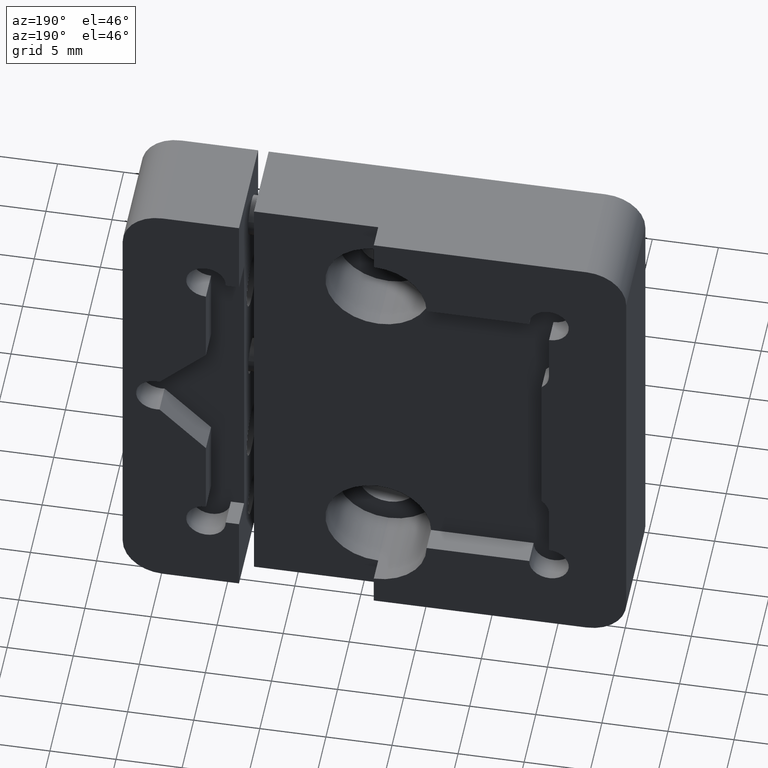
[diagram: clean part render]
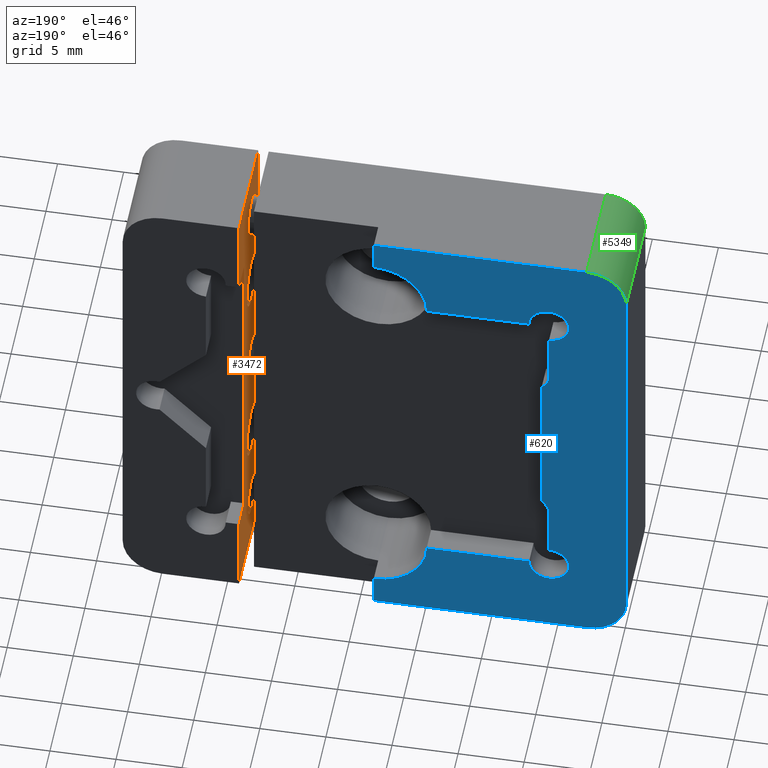
[diagram: same view with three faces highlighted in distinct colors, each labeled with its STEP entity id]
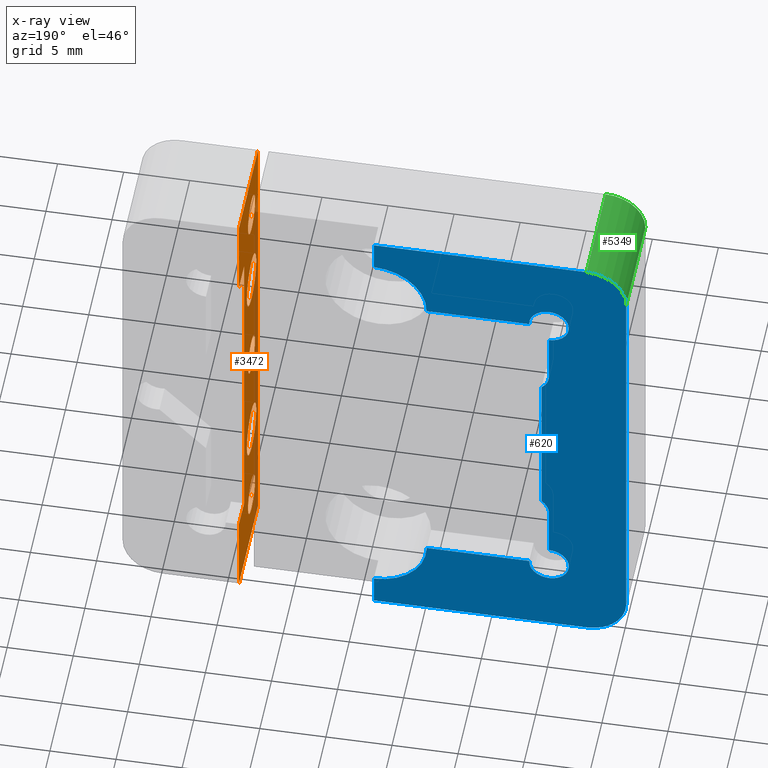
[diagram: x-ray of the same camera — body ghosted, the three highlighted faces saturated]
A machine part, auxiliary view with three faces highlighted in distinct colors.
The next image is the same camera in x-ray (body ghosted, the three faces saturated) — at least one of them is partly hidden behind the body in this view.
Their STEP definitions:

[orange] entity #3472 — the highlighted planar face has unit normal (-1, 0, 0).
#27 = VERTEX_POINT ( 'NONE', #4456 ) ;
#188 = DIRECTION ( 'NONE',  ( 0.000000000000000000, 0.000000000000000000, 1.000000000000000000 ) ) ;
#215 = DIRECTION ( 'NONE',  ( -1.365923996832131116E-16, 0.000000000000000000, -1.000000000000000000 ) ) ;
#245 = DIRECTION ( 'NONE',  ( 0.000000000000000000, 0.000000000000000000, 1.000000000000000000 ) ) ;
#260 = DIRECTION ( 'NONE',  ( 0.000000000000000000, 1.000000000000000000, 0.000000000000000000 ) ) ;
#294 = CIRCLE ( 'NONE', #5994, 2.000000000000000000 ) ;
#363 = CIRCLE ( 'NONE', #6059, 1.499999999999999556 ) ;
#372 = LINE ( 'NONE', #2431, #5809 ) ;
#378 = FACE_BOUND ( 'NONE', #4503, .T. ) ;
#424 = DIRECTION ( 'NONE',  ( 0.000000000000000000, 1.000000000000000000, -0.000000000000000000 ) ) ;
#481 = VERTEX_POINT ( 'NONE', #6073 ) ;
#543 = EDGE_CURVE ( 'NONE', #1434, #481, #3547, .T. ) ;
#545 = DIRECTION ( 'NONE',  ( 1.365923996832131116E-16, -0.000000000000000000, 1.000000000000000000 ) ) ;
#578 = CARTESIAN_POINT ( 'NONE',  ( 10.25000000000000000, -0.9465000000000003411, -2.240115354804697614E-15 ) ) ;
#616 = EDGE_LOOP ( 'NONE', ( #3933, #3879, #1502, #722, #6039, #2623, #6249, #2002 ) ) ;
#643 = VERTEX_POINT ( 'NONE', #6425 ) ;
#679 = VERTEX_POINT ( 'NONE', #6395 ) ;
#683 = CARTESIAN_POINT ( 'NONE',  ( 10.24999999999999822, 4.453500000000000014, -19.05000000000000426 ) ) ;
#705 = EDGE_LOOP ( 'NONE', ( #2522, #4071 ) ) ;
#722 = ORIENTED_EDGE ( 'NONE', *, *, #4191, .T. ) ;
#802 = EDGE_CURVE ( 'NONE', #5320, #3295, #3093, .T. ) ;
#841 = FACE_BOUND ( 'NONE', #2216, .T. ) ;
#842 = AXIS2_PLACEMENT_3D ( 'NONE', #1722, #4760, #245 ) ;
#870 = FACE_OUTER_BOUND ( 'NONE', #616, .T. ) ;
#907 = ORIENTED_EDGE ( 'NONE', *, *, #5249, .F. ) ;
#948 = DIRECTION ( 'NONE',  ( 0.000000000000000000, 0.000000000000000000, -1.000000000000000000 ) ) ;
#997 = CARTESIAN_POINT ( 'NONE',  ( 10.25000000000000355, -0.9465000000000020064, 14.99999999999999822 ) ) ;
#1064 = VECTOR ( 'NONE', #1867, 1000.000000000000000 ) ;
#1165 = VECTOR ( 'NONE', #5243, 1000.000000000000000 ) ;
#1220 = EDGE_CURVE ( 'NONE', #1739, #2100, #4681, .T. ) ;
#1225 = VERTEX_POINT ( 'NONE', #6251 ) ;
#1342 = DIRECTION ( 'NONE',  ( 0.000000000000000000, 1.000000000000000000, 0.000000000000000000 ) ) ;
#1378 = VECTOR ( 'NONE', #424, 1000.000000000000000 ) ;
#1434 = VERTEX_POINT ( 'NONE', #5539 ) ;
#1492 = CIRCLE ( 'NONE', #3395, 1.499999999999999556 ) ;
#1499 = DIRECTION ( 'NONE',  ( 0.000000000000000000, 0.000000000000000000, 1.000000000000000000 ) ) ;
#1502 = ORIENTED_EDGE ( 'NONE', *, *, #3635, .F. ) ;
#1594 = VECTOR ( 'NONE', #215, 1000.000000000000000 ) ;
#1656 = VERTEX_POINT ( 'NONE', #2874 ) ;
#1671 = LINE ( 'NONE', #1741, #1165 ) ;
#1722 = CARTESIAN_POINT ( 'NONE',  ( 10.25000000000000000, -0.9465000000000003411, -2.240115354804697614E-15 ) ) ;
#1739 = VERTEX_POINT ( 'NONE', #5329 ) ;
#1741 = CARTESIAN_POINT ( 'NONE',  ( 10.24999999999999822, -3.746499999999998831, -19.05000000000000426 ) ) ;
#1774 = CARTESIAN_POINT ( 'NONE',  ( 10.24999999999999822, 2.253500000000000281, -12.76350000000000229 ) ) ;
#1792 = VERTEX_POINT ( 'NONE', #5528 ) ;
#1793 = DIRECTION ( 'NONE',  ( -1.000000000000000000, 0.000000000000000000, 1.365923996832131363E-16 ) ) ;
#1851 = DIRECTION ( 'NONE',  ( -1.000000000000000000, 0.000000000000000000, 1.365923996832131116E-16 ) ) ;
#1867 = DIRECTION ( 'NONE',  ( 1.365923996832131116E-16, -0.000000000000000000, 1.000000000000000000 ) ) ;
#1967 = DIRECTION ( 'NONE',  ( -1.000000000000000000, 0.000000000000000000, 1.365923996832131363E-16 ) ) ;
#2002 = ORIENTED_EDGE ( 'NONE', *, *, #4505, .F. ) ;
#2100 = VERTEX_POINT ( 'NONE', #4554 ) ;
#2191 = ORIENTED_EDGE ( 'NONE', *, *, #543, .F. ) ;
#2216 = EDGE_LOOP ( 'NONE', ( #6134, #907 ) ) ;
#2258 = CARTESIAN_POINT ( 'NONE',  ( 10.25000000000000000, -0.9465000000000003411, -1.450000000000000844 ) ) ;
#2311 = PLANE ( 'NONE',  #2541 ) ;
#2371 = VERTEX_POINT ( 'NONE', #3219 ) ;
#2431 = CARTESIAN_POINT ( 'NONE',  ( 10.25000000000000355, 1.841500000000000359, 12.69999999999999929 ) ) ;
#2442 = AXIS2_PLACEMENT_3D ( 'NONE', #578, #3480, #4556 ) ;
#2522 = ORIENTED_EDGE ( 'NONE', *, *, #3349, .T. ) ;
#2529 = DIRECTION ( 'NONE',  ( -1.000000000000000000, 0.000000000000000000, 1.365923996832131363E-16 ) ) ;
#2541 = AXIS2_PLACEMENT_3D ( 'NONE', #5424, #1851, #3932 ) ;
#2598 = CARTESIAN_POINT ( 'NONE',  ( 10.25000000000000355, 4.453500000000000014, 19.05000000000000071 ) ) ;
#2606 = CARTESIAN_POINT ( 'NONE',  ( 10.25000000000000355, -0.9465000000000011182, 7.999999999999998224 ) ) ;
#2623 = ORIENTED_EDGE ( 'NONE', *, *, #1220, .T. ) ;
#2684 = VECTOR ( 'NONE', #260, 1000.000000000000000 ) ;
#2778 = VERTEX_POINT ( 'NONE', #2258 ) ;
#2801 = CIRCLE ( 'NONE', #4454, 2.000000000000000000 ) ;
#2855 = EDGE_CURVE ( 'NONE', #4664, #1225, #1492, .T. ) ;
#2874 = CARTESIAN_POINT ( 'NONE',  ( 10.24999999999999822, -3.746499999999998831, -19.05000000000000071 ) ) ;
#2892 = EDGE_CURVE ( 'NONE', #2371, #27, #3365, .T. ) ;
#2894 = EDGE_LOOP ( 'NONE', ( #5388, #4427 ) ) ;
#2978 = LINE ( 'NONE', #4929, #1378 ) ;
#3093 = CIRCLE ( 'NONE', #3919, 2.000000000000000000 ) ;
#3219 = CARTESIAN_POINT ( 'NONE',  ( 10.25000000000000355, -3.746499999999998831, 19.05000000000000071 ) ) ;
#3295 = VERTEX_POINT ( 'NONE', #4666 ) ;
#3303 = EDGE_CURVE ( 'NONE', #2100, #643, #4729, .T. ) ;
#3349 = EDGE_CURVE ( 'NONE', #2778, #5232, #6233, .T. ) ;
#3351 = CARTESIAN_POINT ( 'NONE',  ( 10.25000000000000000, -0.9465000000000001190, 1.449999999999996403 ) ) ;
#3365 = LINE ( 'NONE', #6362, #4424 ) ;
#3395 = AXIS2_PLACEMENT_3D ( 'NONE', #6302, #1793, #5296 ) ;
#3472 = ADVANCED_FACE ( 'NONE', ( #378, #841, #3872, #4820, #6420, #870 ), #2311, .T. ) ;
#3480 = DIRECTION ( 'NONE',  ( 1.000000000000000000, -0.000000000000000000, -1.365923996832131363E-16 ) ) ;
#3481 = DIRECTION ( 'NONE',  ( -1.000000000000000000, 0.000000000000000000, 1.365923996832131363E-16 ) ) ;
#3511 = DIRECTION ( 'NONE',  ( -1.000000000000000000, 0.000000000000000000, 1.365923996832131363E-16 ) ) ;
#3547 = CIRCLE ( 'NONE', #5012, 2.000000000000000000 ) ;
#3571 = AXIS2_PLACEMENT_3D ( 'NONE', #4290, #2529, #6089 ) ;
#3580 = ORIENTED_EDGE ( 'NONE', *, *, #4959, .F. ) ;
#3635 = EDGE_CURVE ( 'NONE', #5412, #27, #5046, .T. ) ;
#3639 = CARTESIAN_POINT ( 'NONE',  ( 10.25000000000000178, 4.453500000000000014, 12.69999999999999929 ) ) ;
#3872 = FACE_BOUND ( 'NONE', #2894, .T. ) ;
#3879 = ORIENTED_EDGE ( 'NONE', *, *, #2892, .T. ) ;
#3881 = EDGE_CURVE ( 'NONE', #5232, #2778, #4112, .T. ) ;
#3919 = AXIS2_PLACEMENT_3D ( 'NONE', #2606, #3511, #3936 ) ;
#3932 = DIRECTION ( 'NONE',  ( 1.365923996832131116E-16, 0.000000000000000000, 1.000000000000000000 ) ) ;
#3933 = ORIENTED_EDGE ( 'NONE', *, *, #4378, .F. ) ;
#3936 = DIRECTION ( 'NONE',  ( 0.000000000000000000, 0.000000000000000000, -1.000000000000000000 ) ) ;
#4071 = ORIENTED_EDGE ( 'NONE', *, *, #3881, .T. ) ;
#4112 = CIRCLE ( 'NONE', #2442, 1.449999999999998623 ) ;
#4146 = CARTESIAN_POINT ( 'NONE',  ( 10.25000000000000355, -0.9465000000000020064, 16.50000000000000000 ) ) ;
#4169 = ORIENTED_EDGE ( 'NONE', *, *, #5686, .F. ) ;
#4191 = EDGE_CURVE ( 'NONE', #5412, #1792, #372, .T. ) ;
#4253 = LINE ( 'NONE', #1774, #1064 ) ;
#4284 = CARTESIAN_POINT ( 'NONE',  ( 10.25000000000000355, -0.9465000000000011182, 7.999999999999998224 ) ) ;
#4290 = CARTESIAN_POINT ( 'NONE',  ( 10.25000000000000355, -0.9465000000000020064, 14.99999999999999822 ) ) ;
#4315 = CARTESIAN_POINT ( 'NONE',  ( 10.25000000000000000, -0.9465000000000020064, -15.00000000000000178 ) ) ;
#4378 = EDGE_CURVE ( 'NONE', #2371, #1656, #1671, .T. ) ;
#4417 = EDGE_CURVE ( 'NONE', #1739, #1792, #4253, .T. ) ;
#4424 = VECTOR ( 'NONE', #1342, 1000.000000000000000 ) ;
#4427 = ORIENTED_EDGE ( 'NONE', *, *, #802, .F. ) ;
#4454 = AXIS2_PLACEMENT_3D ( 'NONE', #4284, #1967, #948 ) ;
#4456 = CARTESIAN_POINT ( 'NONE',  ( 10.25000000000000355, 4.453500000000000014, 19.05000000000000071 ) ) ;
#4497 = AXIS2_PLACEMENT_3D ( 'NONE', #997, #3481, #6518 ) ;
#4503 = EDGE_LOOP ( 'NONE', ( #4169, #5603 ) ) ;
#4505 = EDGE_CURVE ( 'NONE', #1656, #643, #2978, .T. ) ;
#4524 = DIRECTION ( 'NONE',  ( -1.000000000000000000, 0.000000000000000000, 1.365923996832131363E-16 ) ) ;
#4554 = CARTESIAN_POINT ( 'NONE',  ( 10.25000000000000000, 4.453500000000000014, -12.69999999999999929 ) ) ;
#4556 = DIRECTION ( 'NONE',  ( 0.000000000000000000, 0.000000000000000000, 1.000000000000000000 ) ) ;
#4664 = VERTEX_POINT ( 'NONE', #6180 ) ;
#4666 = CARTESIAN_POINT ( 'NONE',  ( 10.25000000000000355, -0.9465000000000011182, 9.999999999999998224 ) ) ;
#4681 = LINE ( 'NONE', #4745, #2684 ) ;
#4701 = CARTESIAN_POINT ( 'NONE',  ( 10.25000000000000000, -0.9465000000000011182, -8.000000000000001776 ) ) ;
#4729 = LINE ( 'NONE', #683, #1594 ) ;
#4745 = CARTESIAN_POINT ( 'NONE',  ( 10.25000000000000000, 1.841500000000000359, -12.69999999999999929 ) ) ;
#4760 = DIRECTION ( 'NONE',  ( 1.000000000000000000, -0.000000000000000000, -1.365923996832131363E-16 ) ) ;
#4778 = DIRECTION ( 'NONE',  ( -1.000000000000000000, 0.000000000000000000, 1.365923996832131363E-16 ) ) ;
#4820 = FACE_BOUND ( 'NONE', #5178, .T. ) ;
#4915 = EDGE_CURVE ( 'NONE', #5952, #679, #5348, .T. ) ;
#4929 = CARTESIAN_POINT ( 'NONE',  ( 10.24999999999999822, -3.746499999999998831, -19.05000000000000426 ) ) ;
#4959 = EDGE_CURVE ( 'NONE', #481, #1434, #294, .T. ) ;
#5012 = AXIS2_PLACEMENT_3D ( 'NONE', #4701, #5259, #188 ) ;
#5046 = LINE ( 'NONE', #2598, #5918 ) ;
#5178 = EDGE_LOOP ( 'NONE', ( #3580, #2191 ) ) ;
#5232 = VERTEX_POINT ( 'NONE', #3351 ) ;
#5243 = DIRECTION ( 'NONE',  ( -1.365923996832131116E-16, 0.000000000000000000, -1.000000000000000000 ) ) ;
#5249 = EDGE_CURVE ( 'NONE', #679, #5952, #6417, .T. ) ;
#5259 = DIRECTION ( 'NONE',  ( -1.000000000000000000, 0.000000000000000000, 1.365923996832131363E-16 ) ) ;
#5296 = DIRECTION ( 'NONE',  ( 0.000000000000000000, 0.000000000000000000, 1.000000000000000000 ) ) ;
#5320 = VERTEX_POINT ( 'NONE', #5992 ) ;
#5329 = CARTESIAN_POINT ( 'NONE',  ( 10.24999999999999822, 2.253500000000000281, -12.69999999999999929 ) ) ;
#5348 = CIRCLE ( 'NONE', #4497, 1.500000000000003109 ) ;
#5388 = ORIENTED_EDGE ( 'NONE', *, *, #5752, .F. ) ;
#5412 = VERTEX_POINT ( 'NONE', #3639 ) ;
#5424 = CARTESIAN_POINT ( 'NONE',  ( 10.24999999999999822, -3.746499999999998831, -19.05000000000000426 ) ) ;
#5528 = CARTESIAN_POINT ( 'NONE',  ( 10.25000000000000178, 2.253500000000000281, 12.69999999999999751 ) ) ;
#5539 = CARTESIAN_POINT ( 'NONE',  ( 10.25000000000000000, -0.9465000000000008962, -10.00000000000000178 ) ) ;
#5603 = ORIENTED_EDGE ( 'NONE', *, *, #2855, .F. ) ;
#5686 = EDGE_CURVE ( 'NONE', #1225, #4664, #363, .T. ) ;
#5752 = EDGE_CURVE ( 'NONE', #3295, #5320, #2801, .T. ) ;
#5809 = VECTOR ( 'NONE', #6447, 1000.000000000000000 ) ;
#5918 = VECTOR ( 'NONE', #545, 1000.000000000000000 ) ;
#5952 = VERTEX_POINT ( 'NONE', #4146 ) ;
#5992 = CARTESIAN_POINT ( 'NONE',  ( 10.25000000000000355, -0.9465000000000008962, 5.999999999999998224 ) ) ;
#5994 = AXIS2_PLACEMENT_3D ( 'NONE', #6060, #4524, #1499 ) ;
#6039 = ORIENTED_EDGE ( 'NONE', *, *, #4417, .F. ) ;
#6059 = AXIS2_PLACEMENT_3D ( 'NONE', #4315, #4778, #6343 ) ;
#6060 = CARTESIAN_POINT ( 'NONE',  ( 10.25000000000000000, -0.9465000000000011182, -8.000000000000001776 ) ) ;
#6073 = CARTESIAN_POINT ( 'NONE',  ( 10.25000000000000000, -0.9465000000000011182, -6.000000000000001776 ) ) ;
#6089 = DIRECTION ( 'NONE',  ( 0.000000000000000000, 0.000000000000000000, -1.000000000000000000 ) ) ;
#6134 = ORIENTED_EDGE ( 'NONE', *, *, #4915, .F. ) ;
#6180 = CARTESIAN_POINT ( 'NONE',  ( 10.25000000000000000, -0.9465000000000017844, -16.50000000000000000 ) ) ;
#6233 = CIRCLE ( 'NONE', #842, 1.449999999999998623 ) ;
#6249 = ORIENTED_EDGE ( 'NONE', *, *, #3303, .T. ) ;
#6251 = CARTESIAN_POINT ( 'NONE',  ( 10.25000000000000000, -0.9465000000000020064, -13.50000000000000178 ) ) ;
#6302 = CARTESIAN_POINT ( 'NONE',  ( 10.25000000000000000, -0.9465000000000020064, -15.00000000000000178 ) ) ;
#6343 = DIRECTION ( 'NONE',  ( 0.000000000000000000, 0.000000000000000000, 1.000000000000000000 ) ) ;
#6362 = CARTESIAN_POINT ( 'NONE',  ( 10.25000000000000355, 4.127500000000000391, 19.05000000000000071 ) ) ;
#6395 = CARTESIAN_POINT ( 'NONE',  ( 10.25000000000000355, -0.9465000000000017844, 13.49999999999999467 ) ) ;
#6417 = CIRCLE ( 'NONE', #3571, 1.500000000000003109 ) ;
#6420 = FACE_BOUND ( 'NONE', #705, .T. ) ;
#6425 = CARTESIAN_POINT ( 'NONE',  ( 10.24999999999999822, 4.453500000000000014, -19.05000000000000071 ) ) ;
#6447 = DIRECTION ( 'NONE',  ( 0.000000000000000000, -1.000000000000000000, 0.000000000000000000 ) ) ;
#6518 = DIRECTION ( 'NONE',  ( 0.000000000000000000, 0.000000000000000000, -1.000000000000000000 ) ) ;

[blue] entity #620 — the highlighted planar face has unit normal (0, 1, 0).
#1 = AXIS2_PLACEMENT_3D ( 'NONE', #4347, #3375, #3889 ) ;
#35 = EDGE_CURVE ( 'NONE', #2643, #3073, #552, .T. ) ;
#154 = VECTOR ( 'NONE', #3890, 1000.000000000000000 ) ;
#182 = ORIENTED_EDGE ( 'NONE', *, *, #730, .F. ) ;
#222 = ORIENTED_EDGE ( 'NONE', *, *, #604, .T. ) ;
#284 = CARTESIAN_POINT ( 'NONE',  ( 15.87499999999999645, 4.072500000000000675, -15.87500000000000000 ) ) ;
#371 = CARTESIAN_POINT ( 'NONE',  ( 0.05000000000004857503, 4.072500000000000675, -15.87500000000002842 ) ) ;
#386 = DIRECTION ( 'NONE',  ( 0.000000000000000000, 0.000000000000000000, 1.000000000000000000 ) ) ;
#478 = LINE ( 'NONE', #6097, #1191 ) ;
#552 = LINE ( 'NONE', #6488, #806 ) ;
#570 = ORIENTED_EDGE ( 'NONE', *, *, #3423, .F. ) ;
#594 = CARTESIAN_POINT ( 'NONE',  ( -12.65000000000000213, 4.072500000000000675, -6.115051287312481598 ) ) ;
#604 = EDGE_CURVE ( 'NONE', #1303, #4966, #2201, .T. ) ;
#620 = ADVANCED_FACE ( 'NONE', ( #3293 ), #1790, .T. ) ;
#701 = ORIENTED_EDGE ( 'NONE', *, *, #4578, .T. ) ;
#730 = EDGE_CURVE ( 'NONE', #1341, #6252, #478, .T. ) ;
#804 = CARTESIAN_POINT ( 'NONE',  ( -11.70984513484085809, 4.072500000000000675, 12.69999999999999574 ) ) ;
#806 = VECTOR ( 'NONE', #1986, 1000.000000000000000 ) ;
#886 = CARTESIAN_POINT ( 'NONE',  ( -13.20800000000000018, 4.072500000000000675, -11.26400000000001000 ) ) ;
#888 = EDGE_CURVE ( 'NONE', #4956, #4964, #4553, .T. ) ;
#938 = DIRECTION ( 'NONE',  ( 0.000000000000000000, 1.000000000000000000, 0.000000000000000000 ) ) ;
#1039 = VERTEX_POINT ( 'NONE', #5006 ) ;
#1191 = VECTOR ( 'NONE', #1439, 1000.000000000000000 ) ;
#1276 = DIRECTION ( 'NONE',  ( 0.000000000000000000, 1.000000000000000000, 0.000000000000000000 ) ) ;
#1303 = VERTEX_POINT ( 'NONE', #4342 ) ;
#1309 = DIRECTION ( 'NONE',  ( 0.000000000000000000, 1.000000000000000000, 0.000000000000000000 ) ) ;
#1335 = LINE ( 'NONE', #4361, #6014 ) ;
#1341 = VERTEX_POINT ( 'NONE', #886 ) ;
#1366 = AXIS2_PLACEMENT_3D ( 'NONE', #3475, #4551, #6022 ) ;
#1402 = VECTOR ( 'NONE', #3262, 1000.000000000000000 ) ;
#1439 = DIRECTION ( 'NONE',  ( 0.000000000000000000, -0.000000000000000000, 1.000000000000000000 ) ) ;
#1482 = DIRECTION ( 'NONE',  ( 0.000000000000000000, 1.000000000000000000, 0.000000000000000000 ) ) ;
#1520 = DIRECTION ( 'NONE',  ( 0.000000000000000000, 0.000000000000000000, 1.000000000000000000 ) ) ;
#1572 = CARTESIAN_POINT ( 'NONE',  ( -3.949875000000000469, 4.072500000000000675, -12.69999999999999929 ) ) ;
#1604 = EDGE_CURVE ( 'NONE', #1303, #5839, #5164, .T. ) ;
#1790 = PLANE ( 'NONE',  #3862 ) ;
#1822 = CARTESIAN_POINT ( 'NONE',  ( -16.05000000000000426, 4.072500000000000675, -16.05000000000000071 ) ) ;
#1838 = EDGE_CURVE ( 'NONE', #5823, #4159, #6364, .T. ) ;
#1878 = EDGE_CURVE ( 'NONE', #4964, #4432, #5568, .T. ) ;
#1948 = ORIENTED_EDGE ( 'NONE', *, *, #888, .F. ) ;
#1986 = DIRECTION ( 'NONE',  ( 1.359128355056847692E-16, -0.000000000000000000, 1.000000000000000000 ) ) ;
#1987 = DIRECTION ( 'NONE',  ( 0.000000000000000000, 0.000000000000000000, 1.000000000000000000 ) ) ;
#2054 = CARTESIAN_POINT ( 'NONE',  ( -12.64999999999999858, 4.072500000000000675, 6.115051287312478046 ) ) ;
#2061 = ORIENTED_EDGE ( 'NONE', *, *, #3476, .F. ) ;
#2076 = DIRECTION ( 'NONE',  ( 0.000000000000000000, 0.000000000000000000, 1.000000000000000000 ) ) ;
#2133 = EDGE_CURVE ( 'NONE', #6252, #2643, #5413, .T. ) ;
#2145 = LINE ( 'NONE', #3188, #5057 ) ;
#2152 = ORIENTED_EDGE ( 'NONE', *, *, #1838, .F. ) ;
#2201 = CIRCLE ( 'NONE', #3028, 2.999999999999999112 ) ;
#2205 = ORIENTED_EDGE ( 'NONE', *, *, #4296, .F. ) ;
#2245 = LINE ( 'NONE', #6259, #4001 ) ;
#2267 = CARTESIAN_POINT ( 'NONE',  ( -11.70984513484085987, 4.072500000000000675, -12.69999999999999929 ) ) ;
#2330 = EDGE_CURVE ( 'NONE', #1039, #4240, #2145, .T. ) ;
#2344 = DIRECTION ( 'NONE',  ( 0.000000000000000000, 0.000000000000000000, 1.000000000000000000 ) ) ;
#2399 = DIRECTION ( 'NONE',  ( -1.655665450705613570E-15, 0.000000000000000000, 1.000000000000000000 ) ) ;
#2458 = CARTESIAN_POINT ( 'NONE',  ( -19.05000000000000071, 4.072500000000000675, -15.87499999999999645 ) ) ;
#2530 = DIRECTION ( 'NONE',  ( 0.000000000000000000, 1.000000000000000000, 0.000000000000000000 ) ) ;
#2567 = EDGE_CURVE ( 'NONE', #3062, #1039, #5384, .T. ) ;
#2571 = DIRECTION ( 'NONE',  ( 0.000000000000000000, 1.000000000000000000, 0.000000000000000000 ) ) ;
#2636 = DIRECTION ( 'NONE',  ( 1.000000000000000000, -0.000000000000000000, 1.365923996832132102E-16 ) ) ;
#2643 = VERTEX_POINT ( 'NONE', #594 ) ;
#2745 = ORIENTED_EDGE ( 'NONE', *, *, #35, .F. ) ;
#2835 = CARTESIAN_POINT ( 'NONE',  ( -11.62049999999999805, 4.072500000000000675, 7.323474226518781549 ) ) ;
#2843 = CARTESIAN_POINT ( 'NONE',  ( 0.05000000000000000278, 4.072500000000000675, 12.69999999999999929 ) ) ;
#2879 = CARTESIAN_POINT ( 'NONE',  ( -13.20800000000000018, 4.072500000000000675, 11.26399999999998158 ) ) ;
#3020 = EDGE_CURVE ( 'NONE', #4273, #3062, #4606, .T. ) ;
#3028 = AXIS2_PLACEMENT_3D ( 'NONE', #1822, #1276, #3810 ) ;
#3032 = CARTESIAN_POINT ( 'NONE',  ( -13.20799999999999841, 4.072500000000000675, 12.76349999999998452 ) ) ;
#3061 = CARTESIAN_POINT ( 'NONE',  ( 15.87499999999999645, 4.072500000000000675, -12.69999999999999929 ) ) ;
#3062 = VERTEX_POINT ( 'NONE', #6462 ) ;
#3073 = VERTEX_POINT ( 'NONE', #2054 ) ;
#3145 = AXIS2_PLACEMENT_3D ( 'NONE', #2843, #938, #386 ) ;
#3188 = CARTESIAN_POINT ( 'NONE',  ( 15.87499999999999645, 4.072500000000000675, 19.04999999999999716 ) ) ;
#3247 = ORIENTED_EDGE ( 'NONE', *, *, #2567, .F. ) ;
#3262 = DIRECTION ( 'NONE',  ( 1.000000000000000000, 0.000000000000000000, 0.000000000000000000 ) ) ;
#3293 = FACE_OUTER_BOUND ( 'NONE', #5189, .T. ) ;
#3326 = DIRECTION ( 'NONE',  ( 0.000000000000000000, -0.000000000000000000, 1.000000000000000000 ) ) ;
#3375 = DIRECTION ( 'NONE',  ( 0.000000000000000000, 1.000000000000000000, 0.000000000000000000 ) ) ;
#3420 = AXIS2_PLACEMENT_3D ( 'NONE', #5960, #2530, #2076 ) ;
#3423 = EDGE_CURVE ( 'NONE', #3073, #6340, #4737, .T. ) ;
#3429 = ORIENTED_EDGE ( 'NONE', *, *, #2133, .F. ) ;
#3475 = CARTESIAN_POINT ( 'NONE',  ( -13.20799999999999841, 4.072500000000000675, -12.76350000000001117 ) ) ;
#3476 = EDGE_CURVE ( 'NONE', #5839, #4956, #1335, .T. ) ;
#3502 = CARTESIAN_POINT ( 'NONE',  ( -16.04999999999999716, 4.072500000000000675, 19.04999999999999716 ) ) ;
#3562 = CARTESIAN_POINT ( 'NONE',  ( -13.20799999999999841, 4.072500000000000675, 14.26299999999998569 ) ) ;
#3577 = CARTESIAN_POINT ( 'NONE',  ( -19.05000000000000071, 4.072500000000000675, -16.05000000000000071 ) ) ;
#3654 = ORIENTED_EDGE ( 'NONE', *, *, #2330, .F. ) ;
#3695 = CIRCLE ( 'NONE', #6442, 2.999999999999999112 ) ;
#3799 = EDGE_CURVE ( 'NONE', #4159, #4273, #2245, .T. ) ;
#3810 = DIRECTION ( 'NONE',  ( 0.000000000000000000, 0.000000000000000000, 1.000000000000000000 ) ) ;
#3862 = AXIS2_PLACEMENT_3D ( 'NONE', #284, #1309, #3326 ) ;
#3863 = DIRECTION ( 'NONE',  ( 0.000000000000000000, 0.000000000000000000, 1.000000000000000000 ) ) ;
#3889 = DIRECTION ( 'NONE',  ( 0.000000000000000000, 0.000000000000000000, 1.000000000000000000 ) ) ;
#3890 = DIRECTION ( 'NONE',  ( 0.000000000000000000, 0.000000000000000000, 1.000000000000000000 ) ) ;
#3910 = ORIENTED_EDGE ( 'NONE', *, *, #1878, .F. ) ;
#3989 = CARTESIAN_POINT ( 'NONE',  ( 0.05000000000000000278, 4.072500000000000675, -12.69999999999999929 ) ) ;
#4001 = VECTOR ( 'NONE', #2636, 1000.000000000000000 ) ;
#4035 = CARTESIAN_POINT ( 'NONE',  ( 0.05000000000002412931, 4.072500000000000675, -16.69987499999999869 ) ) ;
#4128 = DIRECTION ( 'NONE',  ( -1.000000000000000000, 0.000000000000000000, 0.000000000000000000 ) ) ;
#4159 = VERTEX_POINT ( 'NONE', #804 ) ;
#4240 = VERTEX_POINT ( 'NONE', #3502 ) ;
#4273 = VERTEX_POINT ( 'NONE', #5586 ) ;
#4296 = EDGE_CURVE ( 'NONE', #4441, #4966, #6088, .T. ) ;
#4342 = CARTESIAN_POINT ( 'NONE',  ( -16.05000000000000426, 4.072500000000000675, -19.05000000000000071 ) ) ;
#4347 = CARTESIAN_POINT ( 'NONE',  ( -13.20799999999999841, 4.072500000000000675, 12.76349999999998452 ) ) ;
#4361 = CARTESIAN_POINT ( 'NONE',  ( 0.05000000000002428890, 4.072500000000000675, -15.87499999999999645 ) ) ;
#4377 = CARTESIAN_POINT ( 'NONE',  ( -13.20800000000000018, 4.072500000000000675, -15.87500000000000000 ) ) ;
#4432 = VERTEX_POINT ( 'NONE', #2267 ) ;
#4434 = EDGE_CURVE ( 'NONE', #6095, #5823, #4525, .T. ) ;
#4441 = VERTEX_POINT ( 'NONE', #6407 ) ;
#4525 = CIRCLE ( 'NONE', #1, 1.499500000000000721 ) ;
#4551 = DIRECTION ( 'NONE',  ( 0.000000000000000000, 1.000000000000000000, 0.000000000000000000 ) ) ;
#4553 = CIRCLE ( 'NONE', #6153, 3.999874999999999847 ) ;
#4566 = CARTESIAN_POINT ( 'NONE',  ( -13.20799999999999841, 4.072500000000000675, -7.323474226518782437 ) ) ;
#4578 = EDGE_CURVE ( 'NONE', #4441, #4240, #3695, .T. ) ;
#4606 = CIRCLE ( 'NONE', #3145, 3.999874999999999847 ) ;
#4717 = ORIENTED_EDGE ( 'NONE', *, *, #4434, .F. ) ;
#4737 = CIRCLE ( 'NONE', #5589, 1.587500000000000355 ) ;
#4940 = DIRECTION ( 'NONE',  ( 1.897116662266848964E-16, -0.000000000000000000, 1.000000000000000000 ) ) ;
#4956 = VERTEX_POINT ( 'NONE', #4035 ) ;
#4964 = VERTEX_POINT ( 'NONE', #1572 ) ;
#4966 = VERTEX_POINT ( 'NONE', #3577 ) ;
#4986 = DIRECTION ( 'NONE',  ( -1.000000000000000000, 0.000000000000000000, 0.000000000000000000 ) ) ;
#5006 = CARTESIAN_POINT ( 'NONE',  ( 0.04999999999998959443, 4.072500000000000675, 19.05000000000000071 ) ) ;
#5057 = VECTOR ( 'NONE', #4128, 1000.000000000000000 ) ;
#5164 = LINE ( 'NONE', #5776, #1402 ) ;
#5189 = EDGE_LOOP ( 'NONE', ( #5746, #222, #2205, #701, #3654, #3247, #6188, #6444, #2152, #4717, #6194, #570, #2745, #3429, #182, #6480, #3910, #1948, #2061 ) ) ;
#5284 = EDGE_CURVE ( 'NONE', #4432, #1341, #5696, .T. ) ;
#5384 = LINE ( 'NONE', #371, #6337 ) ;
#5413 = CIRCLE ( 'NONE', #3420, 1.587500000000000355 ) ;
#5509 = CARTESIAN_POINT ( 'NONE',  ( 0.05000000000002571832, 4.072500000000000675, -19.05000000000000071 ) ) ;
#5568 = LINE ( 'NONE', #3061, #5627 ) ;
#5586 = CARTESIAN_POINT ( 'NONE',  ( -3.949874999999998693, 4.072500000000000675, 12.69999999999999751 ) ) ;
#5589 = AXIS2_PLACEMENT_3D ( 'NONE', #2835, #5864, #2344 ) ;
#5601 = CARTESIAN_POINT ( 'NONE',  ( -13.20799999999999841, 4.072500000000000675, 7.323474226518781549 ) ) ;
#5627 = VECTOR ( 'NONE', #4986, 1000.000000000000000 ) ;
#5696 = CIRCLE ( 'NONE', #1366, 1.499500000000000721 ) ;
#5704 = EDGE_CURVE ( 'NONE', #6340, #6095, #6408, .T. ) ;
#5746 = ORIENTED_EDGE ( 'NONE', *, *, #1604, .F. ) ;
#5776 = CARTESIAN_POINT ( 'NONE',  ( 15.87499999999999645, 4.072500000000000675, -19.05000000000000071 ) ) ;
#5823 = VERTEX_POINT ( 'NONE', #3562 ) ;
#5839 = VERTEX_POINT ( 'NONE', #5509 ) ;
#5864 = DIRECTION ( 'NONE',  ( 0.000000000000000000, 1.000000000000000000, 0.000000000000000000 ) ) ;
#5947 = AXIS2_PLACEMENT_3D ( 'NONE', #3032, #2571, #1987 ) ;
#5960 = CARTESIAN_POINT ( 'NONE',  ( -11.62049999999999805, 4.072500000000000675, -7.323474226518782437 ) ) ;
#6014 = VECTOR ( 'NONE', #4940, 1000.000000000000000 ) ;
#6022 = DIRECTION ( 'NONE',  ( 0.000000000000000000, 0.000000000000000000, 1.000000000000000000 ) ) ;
#6041 = CARTESIAN_POINT ( 'NONE',  ( -16.05000000000000071, 4.072500000000000675, 16.05000000000000071 ) ) ;
#6051 = DIRECTION ( 'NONE',  ( -1.092739197465706520E-16, 0.000000000000000000, -1.000000000000000000 ) ) ;
#6088 = LINE ( 'NONE', #2458, #6333 ) ;
#6095 = VERTEX_POINT ( 'NONE', #2879 ) ;
#6097 = CARTESIAN_POINT ( 'NONE',  ( -13.20800000000000018, 4.072500000000000675, -15.87500000000000000 ) ) ;
#6153 = AXIS2_PLACEMENT_3D ( 'NONE', #3989, #6411, #3863 ) ;
#6188 = ORIENTED_EDGE ( 'NONE', *, *, #3020, .F. ) ;
#6194 = ORIENTED_EDGE ( 'NONE', *, *, #5704, .F. ) ;
#6252 = VERTEX_POINT ( 'NONE', #4566 ) ;
#6259 = CARTESIAN_POINT ( 'NONE',  ( 15.87499999999999289, 4.072500000000000675, 12.69999999999999929 ) ) ;
#6333 = VECTOR ( 'NONE', #6051, 1000.000000000000000 ) ;
#6337 = VECTOR ( 'NONE', #2399, 1000.000000000000000 ) ;
#6340 = VERTEX_POINT ( 'NONE', #5601 ) ;
#6364 = CIRCLE ( 'NONE', #5947, 1.499500000000000721 ) ;
#6407 = CARTESIAN_POINT ( 'NONE',  ( -19.04999999999999716, 4.072500000000000675, 16.04999999999999716 ) ) ;
#6408 = LINE ( 'NONE', #4377, #154 ) ;
#6411 = DIRECTION ( 'NONE',  ( 0.000000000000000000, 1.000000000000000000, 0.000000000000000000 ) ) ;
#6442 = AXIS2_PLACEMENT_3D ( 'NONE', #6041, #1482, #1520 ) ;
#6444 = ORIENTED_EDGE ( 'NONE', *, *, #3799, .F. ) ;
#6462 = CARTESIAN_POINT ( 'NONE',  ( 0.04999999999999463901, 4.072500000000000675, 16.69987499999999869 ) ) ;
#6480 = ORIENTED_EDGE ( 'NONE', *, *, #5284, .F. ) ;
#6488 = CARTESIAN_POINT ( 'NONE',  ( -12.65000000000000036, 4.072500000000000675, -15.87499999999999645 ) ) ;

[green] entity #5349 — the highlighted cylindrical surface (partial cylindrical patch) has radius 3 mm, axis along (0, -1, 0).
#192 = EDGE_CURVE ( 'NONE', #1186, #4441, #3858, .T. ) ;
#573 = CYLINDRICAL_SURFACE ( 'NONE', #638, 2.999999999999999112 ) ;
#588 = LINE ( 'NONE', #4600, #4989 ) ;
#628 = ORIENTED_EDGE ( 'NONE', *, *, #4578, .F. ) ;
#638 = AXIS2_PLACEMENT_3D ( 'NONE', #4970, #4028, #1494 ) ;
#956 = FACE_OUTER_BOUND ( 'NONE', #2664, .T. ) ;
#1034 = DIRECTION ( 'NONE',  ( -0.000000000000000000, -1.000000000000000000, -0.000000000000000000 ) ) ;
#1186 = VERTEX_POINT ( 'NONE', #1704 ) ;
#1482 = DIRECTION ( 'NONE',  ( 0.000000000000000000, 1.000000000000000000, 0.000000000000000000 ) ) ;
#1494 = DIRECTION ( 'NONE',  ( 0.000000000000000000, 0.000000000000000000, -1.000000000000000000 ) ) ;
#1520 = DIRECTION ( 'NONE',  ( 0.000000000000000000, 0.000000000000000000, 1.000000000000000000 ) ) ;
#1662 = VECTOR ( 'NONE', #4023, 1000.000000000000000 ) ;
#1697 = CIRCLE ( 'NONE', #3991, 2.999999999999999112 ) ;
#1704 = CARTESIAN_POINT ( 'NONE',  ( -19.04999999999999716, -4.127500000000000391, 16.04999999999999716 ) ) ;
#2359 = ORIENTED_EDGE ( 'NONE', *, *, #6386, .F. ) ;
#2556 = CARTESIAN_POINT ( 'NONE',  ( -19.05000000000000071, 4.127500000000000391, 16.05000000000000071 ) ) ;
#2664 = EDGE_LOOP ( 'NONE', ( #628, #3097, #6221, #2359 ) ) ;
#3057 = DIRECTION ( 'NONE',  ( 0.000000000000000000, 0.000000000000000000, 1.000000000000000000 ) ) ;
#3097 = ORIENTED_EDGE ( 'NONE', *, *, #192, .F. ) ;
#3135 = DIRECTION ( 'NONE',  ( 0.000000000000000000, -1.000000000000000000, 0.000000000000000000 ) ) ;
#3206 = CARTESIAN_POINT ( 'NONE',  ( -16.04999999999999716, -4.127500000000000391, 19.04999999999999716 ) ) ;
#3502 = CARTESIAN_POINT ( 'NONE',  ( -16.04999999999999716, 4.072500000000000675, 19.04999999999999716 ) ) ;
#3695 = CIRCLE ( 'NONE', #6442, 2.999999999999999112 ) ;
#3858 = LINE ( 'NONE', #2556, #1662 ) ;
#3991 = AXIS2_PLACEMENT_3D ( 'NONE', #5593, #1034, #3057 ) ;
#4023 = DIRECTION ( 'NONE',  ( -0.000000000000000000, 1.000000000000000000, -0.000000000000000000 ) ) ;
#4028 = DIRECTION ( 'NONE',  ( 0.000000000000000000, -1.000000000000000000, 0.000000000000000000 ) ) ;
#4240 = VERTEX_POINT ( 'NONE', #3502 ) ;
#4441 = VERTEX_POINT ( 'NONE', #6407 ) ;
#4578 = EDGE_CURVE ( 'NONE', #4441, #4240, #3695, .T. ) ;
#4600 = CARTESIAN_POINT ( 'NONE',  ( -16.05000000000000071, 4.127500000000000391, 19.05000000000000071 ) ) ;
#4615 = VERTEX_POINT ( 'NONE', #3206 ) ;
#4970 = CARTESIAN_POINT ( 'NONE',  ( -16.05000000000000071, 4.127500000000000391, 16.05000000000000071 ) ) ;
#4989 = VECTOR ( 'NONE', #3135, 1000.000000000000000 ) ;
#5002 = EDGE_CURVE ( 'NONE', #4615, #1186, #1697, .T. ) ;
#5349 = ADVANCED_FACE ( 'NONE', ( #956 ), #573, .T. ) ;
#5593 = CARTESIAN_POINT ( 'NONE',  ( -16.05000000000000071, -4.127500000000000391, 16.05000000000000071 ) ) ;
#6041 = CARTESIAN_POINT ( 'NONE',  ( -16.05000000000000071, 4.072500000000000675, 16.05000000000000071 ) ) ;
#6221 = ORIENTED_EDGE ( 'NONE', *, *, #5002, .F. ) ;
#6386 = EDGE_CURVE ( 'NONE', #4240, #4615, #588, .T. ) ;
#6407 = CARTESIAN_POINT ( 'NONE',  ( -19.04999999999999716, 4.072500000000000675, 16.04999999999999716 ) ) ;
#6442 = AXIS2_PLACEMENT_3D ( 'NONE', #6041, #1482, #1520 ) ;